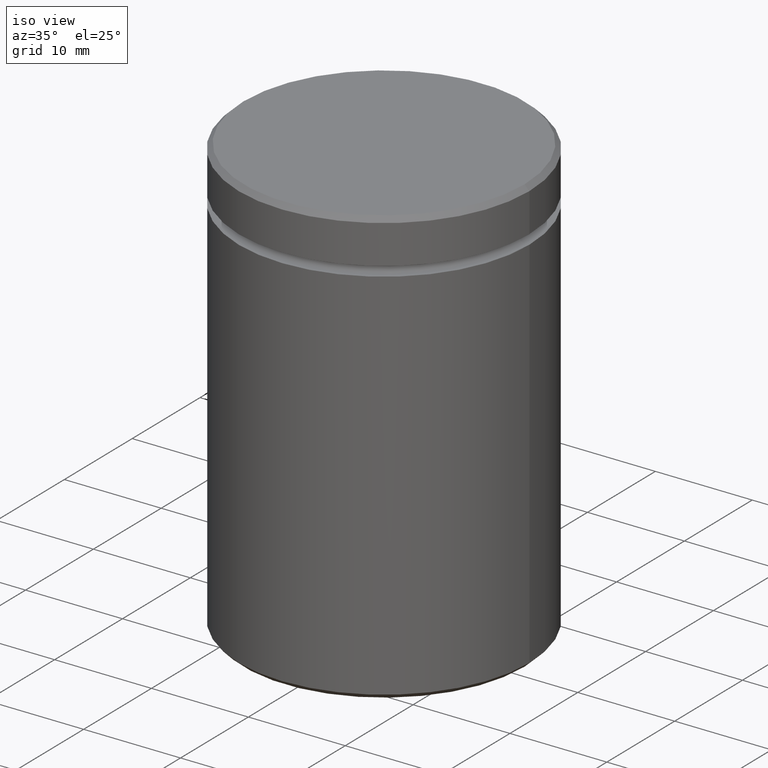
[diagram: clean part render]
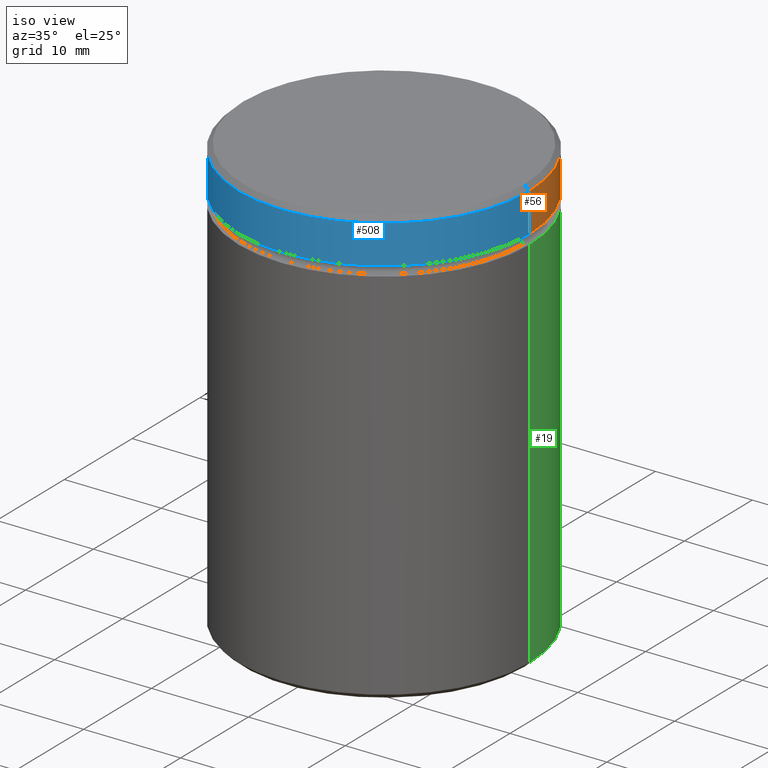
[diagram: same view with three faces highlighted in distinct colors, each labeled with its STEP entity id]
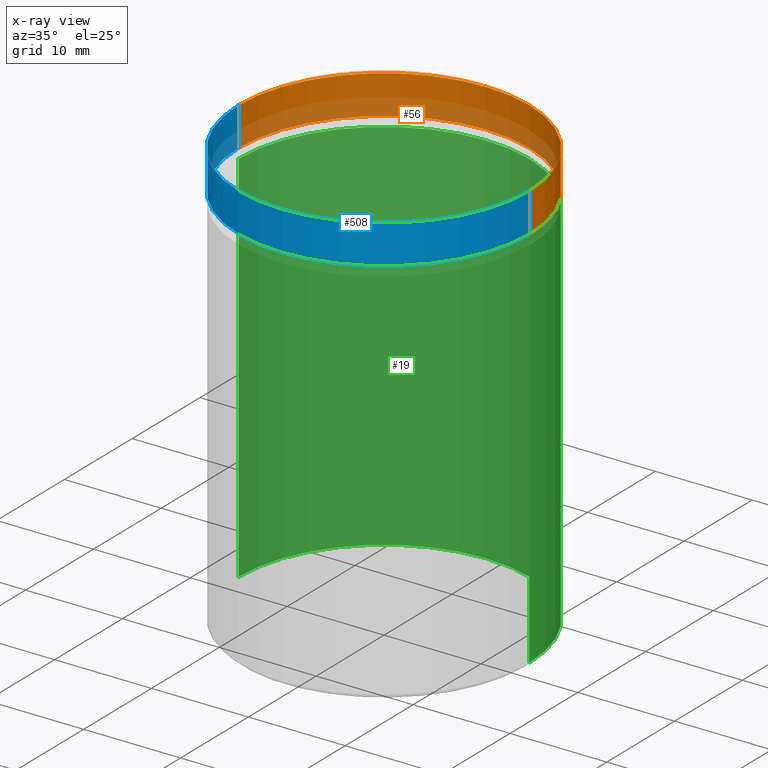
[diagram: x-ray of the same camera — body ghosted, the three highlighted faces saturated]
A machine part, iso view with three faces highlighted in distinct colors.
The next image is the same camera in x-ray (body ghosted, the three faces saturated) — at least one of them is partly hidden behind the body in this view.
Their STEP definitions:

[orange] entity #56 — the highlighted cylindrical surface (partial cylindrical patch) has radius 15 mm, axis along (-0, -0, 1).
#4 = DIRECTION ( 'NONE',  ( 1.000000000000000000, 0.000000000000000000, 0.000000000000000000 ) ) ;
#15 = DIRECTION ( 'NONE',  ( 0.000000000000000000, 0.000000000000000000, -1.000000000000000000 ) ) ;
#23 = EDGE_CURVE ( 'NONE', #366, #95, #306, .T. ) ;
#41 = DIRECTION ( 'NONE',  ( -0.000000000000000000, -0.000000000000000000, 1.000000000000000000 ) ) ;
#44 = DIRECTION ( 'NONE',  ( -0.000000000000000000, -0.000000000000000000, 1.000000000000000000 ) ) ;
#56 = ADVANCED_FACE ( 'NONE', ( #564 ), #135, .T. ) ;
#58 = ORIENTED_EDGE ( 'NONE', *, *, #23, .F. ) ;
#86 = ORIENTED_EDGE ( 'NONE', *, *, #191, .T. ) ;
#95 = VERTEX_POINT ( 'NONE', #176 ) ;
#121 = CARTESIAN_POINT ( 'NONE',  ( 15.00000000000000000, 0.000000000000000000, -4.500000000000000888 ) ) ;
#135 = CYLINDRICAL_SURFACE ( 'NONE', #509, 15.00000000000000000 ) ;
#176 = CARTESIAN_POINT ( 'NONE',  ( 15.00000000000000000, 0.000000000000000000, -0.4999999999999970024 ) ) ;
#178 = CARTESIAN_POINT ( 'NONE',  ( 0.000000000000000000, 0.000000000000000000, 0.000000000000000000 ) ) ;
#191 = EDGE_CURVE ( 'NONE', #319, #95, #380, .T. ) ;
#214 = CARTESIAN_POINT ( 'NONE',  ( -15.00000000000000000, 1.836970198721029589E-15, 0.000000000000000000 ) ) ;
#221 = LINE ( 'NONE', #214, #566 ) ;
#243 = CARTESIAN_POINT ( 'NONE',  ( 0.000000000000000000, 0.000000000000000000, -0.4999999999999970024 ) ) ;
#257 = CIRCLE ( 'NONE', #475, 15.00000000000000000 ) ;
#260 = CARTESIAN_POINT ( 'NONE',  ( -15.00000000000000000, 1.836970198721029589E-15, -4.500000000000000888 ) ) ;
#261 = DIRECTION ( 'NONE',  ( -0.000000000000000000, -0.000000000000000000, 1.000000000000000000 ) ) ;
#277 = AXIS2_PLACEMENT_3D ( 'NONE', #243, #15, #489 ) ;
#291 = EDGE_LOOP ( 'NONE', ( #320, #536, #86, #58 ) ) ;
#306 = LINE ( 'NONE', #347, #538 ) ;
#319 = VERTEX_POINT ( 'NONE', #548 ) ;
#320 = ORIENTED_EDGE ( 'NONE', *, *, #476, .T. ) ;
#347 = CARTESIAN_POINT ( 'NONE',  ( 15.00000000000000000, 0.000000000000000000, 0.000000000000000000 ) ) ;
#366 = VERTEX_POINT ( 'NONE', #121 ) ;
#380 = CIRCLE ( 'NONE', #277, 15.00000000000000000 ) ;
#434 = DIRECTION ( 'NONE',  ( -0.000000000000000000, -0.000000000000000000, 1.000000000000000000 ) ) ;
#475 = AXIS2_PLACEMENT_3D ( 'NONE', #560, #44, #525 ) ;
#476 = EDGE_CURVE ( 'NONE', #366, #517, #257, .T. ) ;
#489 = DIRECTION ( 'NONE',  ( 1.000000000000000000, 0.000000000000000000, 0.000000000000000000 ) ) ;
#509 = AXIS2_PLACEMENT_3D ( 'NONE', #178, #41, #4 ) ;
#517 = VERTEX_POINT ( 'NONE', #260 ) ;
#522 = EDGE_CURVE ( 'NONE', #517, #319, #221, .T. ) ;
#525 = DIRECTION ( 'NONE',  ( 1.000000000000000000, 0.000000000000000000, 0.000000000000000000 ) ) ;
#536 = ORIENTED_EDGE ( 'NONE', *, *, #522, .T. ) ;
#538 = VECTOR ( 'NONE', #261, 1000.000000000000000 ) ;
#548 = CARTESIAN_POINT ( 'NONE',  ( -15.00000000000000000, 1.836970198721029589E-15, -0.4999999999999970024 ) ) ;
#560 = CARTESIAN_POINT ( 'NONE',  ( 0.000000000000000000, 0.000000000000000000, -4.500000000000000888 ) ) ;
#564 = FACE_OUTER_BOUND ( 'NONE', #291, .T. ) ;
#566 = VECTOR ( 'NONE', #434, 1000.000000000000000 ) ;

[blue] entity #508 — the highlighted cylindrical surface (partial cylindrical patch) has radius 15 mm, axis along (-0, -0, 1).
#14 = ORIENTED_EDGE ( 'NONE', *, *, #522, .F. ) ;
#23 = EDGE_CURVE ( 'NONE', #366, #95, #306, .T. ) ;
#43 = ORIENTED_EDGE ( 'NONE', *, *, #449, .T. ) ;
#51 = ORIENTED_EDGE ( 'NONE', *, *, #387, .T. ) ;
#90 = DIRECTION ( 'NONE',  ( 1.000000000000000000, 0.000000000000000000, 0.000000000000000000 ) ) ;
#95 = VERTEX_POINT ( 'NONE', #176 ) ;
#101 = AXIS2_PLACEMENT_3D ( 'NONE', #369, #278, #418 ) ;
#121 = CARTESIAN_POINT ( 'NONE',  ( 15.00000000000000000, 0.000000000000000000, -4.500000000000000888 ) ) ;
#176 = CARTESIAN_POINT ( 'NONE',  ( 15.00000000000000000, 0.000000000000000000, -0.4999999999999970024 ) ) ;
#214 = CARTESIAN_POINT ( 'NONE',  ( -15.00000000000000000, 1.836970198721029589E-15, 0.000000000000000000 ) ) ;
#221 = LINE ( 'NONE', #214, #566 ) ;
#249 = CIRCLE ( 'NONE', #541, 15.00000000000000000 ) ;
#250 = AXIS2_PLACEMENT_3D ( 'NONE', #338, #483, #90 ) ;
#260 = CARTESIAN_POINT ( 'NONE',  ( -15.00000000000000000, 1.836970198721029589E-15, -4.500000000000000888 ) ) ;
#261 = DIRECTION ( 'NONE',  ( -0.000000000000000000, -0.000000000000000000, 1.000000000000000000 ) ) ;
#278 = DIRECTION ( 'NONE',  ( -0.000000000000000000, -0.000000000000000000, 1.000000000000000000 ) ) ;
#300 = ORIENTED_EDGE ( 'NONE', *, *, #23, .T. ) ;
#301 = EDGE_LOOP ( 'NONE', ( #14, #51, #300, #43 ) ) ;
#305 = DIRECTION ( 'NONE',  ( 1.000000000000000000, 0.000000000000000000, 0.000000000000000000 ) ) ;
#306 = LINE ( 'NONE', #347, #538 ) ;
#319 = VERTEX_POINT ( 'NONE', #548 ) ;
#338 = CARTESIAN_POINT ( 'NONE',  ( 0.000000000000000000, 0.000000000000000000, 0.000000000000000000 ) ) ;
#347 = CARTESIAN_POINT ( 'NONE',  ( 15.00000000000000000, 0.000000000000000000, 0.000000000000000000 ) ) ;
#366 = VERTEX_POINT ( 'NONE', #121 ) ;
#369 = CARTESIAN_POINT ( 'NONE',  ( 0.000000000000000000, 0.000000000000000000, -4.500000000000000888 ) ) ;
#387 = EDGE_CURVE ( 'NONE', #517, #366, #511, .T. ) ;
#390 = CARTESIAN_POINT ( 'NONE',  ( 0.000000000000000000, 0.000000000000000000, -0.4999999999999970024 ) ) ;
#418 = DIRECTION ( 'NONE',  ( 1.000000000000000000, 0.000000000000000000, 0.000000000000000000 ) ) ;
#434 = DIRECTION ( 'NONE',  ( -0.000000000000000000, -0.000000000000000000, 1.000000000000000000 ) ) ;
#449 = EDGE_CURVE ( 'NONE', #95, #319, #249, .T. ) ;
#479 = FACE_OUTER_BOUND ( 'NONE', #301, .T. ) ;
#483 = DIRECTION ( 'NONE',  ( -0.000000000000000000, -0.000000000000000000, 1.000000000000000000 ) ) ;
#508 = ADVANCED_FACE ( 'NONE', ( #479 ), #555, .T. ) ;
#511 = CIRCLE ( 'NONE', #101, 15.00000000000000000 ) ;
#517 = VERTEX_POINT ( 'NONE', #260 ) ;
#522 = EDGE_CURVE ( 'NONE', #517, #319, #221, .T. ) ;
#528 = DIRECTION ( 'NONE',  ( 0.000000000000000000, 0.000000000000000000, -1.000000000000000000 ) ) ;
#538 = VECTOR ( 'NONE', #261, 1000.000000000000000 ) ;
#541 = AXIS2_PLACEMENT_3D ( 'NONE', #390, #528, #305 ) ;
#548 = CARTESIAN_POINT ( 'NONE',  ( -15.00000000000000000, 1.836970198721029589E-15, -0.4999999999999970024 ) ) ;
#555 = CYLINDRICAL_SURFACE ( 'NONE', #250, 15.00000000000000000 ) ;
#566 = VECTOR ( 'NONE', #434, 1000.000000000000000 ) ;

[green] entity #19 — the highlighted cylindrical surface (partial cylindrical patch) has radius 15 mm, axis along (-0, -0, 1).
#19 = ADVANCED_FACE ( 'NONE', ( #181 ), #256, .T. ) ;
#25 = CIRCLE ( 'NONE', #374, 15.00000000000000000 ) ;
#45 = VECTOR ( 'NONE', #458, 1000.000000000000000 ) ;
#47 = VERTEX_POINT ( 'NONE', #472 ) ;
#48 = ORIENTED_EDGE ( 'NONE', *, *, #229, .F. ) ;
#98 = AXIS2_PLACEMENT_3D ( 'NONE', #477, #530, #438 ) ;
#100 = LINE ( 'NONE', #106, #45 ) ;
#106 = CARTESIAN_POINT ( 'NONE',  ( -15.00000000000000000, 1.836970198721029589E-15, 0.000000000000000000 ) ) ;
#108 = VECTOR ( 'NONE', #274, 1000.000000000000000 ) ;
#120 = EDGE_CURVE ( 'NONE', #523, #47, #167, .T. ) ;
#125 = DIRECTION ( 'NONE',  ( -0.000000000000000000, -0.000000000000000000, 1.000000000000000000 ) ) ;
#143 = EDGE_LOOP ( 'NONE', ( #393, #452, #284, #48 ) ) ;
#148 = VERTEX_POINT ( 'NONE', #499 ) ;
#167 = CIRCLE ( 'NONE', #556, 15.00000000000000000 ) ;
#181 = FACE_OUTER_BOUND ( 'NONE', #143, .T. ) ;
#195 = LINE ( 'NONE', #272, #108 ) ;
#199 = DIRECTION ( 'NONE',  ( 1.000000000000000000, 0.000000000000000000, 0.000000000000000000 ) ) ;
#223 = EDGE_CURVE ( 'NONE', #47, #288, #100, .T. ) ;
#229 = EDGE_CURVE ( 'NONE', #523, #148, #195, .T. ) ;
#256 = CYLINDRICAL_SURFACE ( 'NONE', #98, 15.00000000000000000 ) ;
#267 = CARTESIAN_POINT ( 'NONE',  ( 15.00000000000000000, 0.000000000000000000, -44.49999999999998579 ) ) ;
#272 = CARTESIAN_POINT ( 'NONE',  ( 15.00000000000000000, 0.000000000000000000, 0.000000000000000000 ) ) ;
#274 = DIRECTION ( 'NONE',  ( -0.000000000000000000, -0.000000000000000000, 1.000000000000000000 ) ) ;
#284 = ORIENTED_EDGE ( 'NONE', *, *, #373, .F. ) ;
#288 = VERTEX_POINT ( 'NONE', #332 ) ;
#295 = DIRECTION ( 'NONE',  ( -0.000000000000000000, -0.000000000000000000, 1.000000000000000000 ) ) ;
#332 = CARTESIAN_POINT ( 'NONE',  ( -15.00000000000000000, 1.836970198721029589E-15, -5.500000000000000000 ) ) ;
#373 = EDGE_CURVE ( 'NONE', #148, #288, #25, .T. ) ;
#374 = AXIS2_PLACEMENT_3D ( 'NONE', #501, #295, #199 ) ;
#393 = ORIENTED_EDGE ( 'NONE', *, *, #120, .T. ) ;
#438 = DIRECTION ( 'NONE',  ( 1.000000000000000000, 0.000000000000000000, 0.000000000000000000 ) ) ;
#452 = ORIENTED_EDGE ( 'NONE', *, *, #223, .T. ) ;
#458 = DIRECTION ( 'NONE',  ( -0.000000000000000000, -0.000000000000000000, 1.000000000000000000 ) ) ;
#472 = CARTESIAN_POINT ( 'NONE',  ( -15.00000000000000000, 1.836970198721029589E-15, -44.49999999999998579 ) ) ;
#474 = DIRECTION ( 'NONE',  ( -1.000000000000000000, 0.000000000000000000, 0.000000000000000000 ) ) ;
#477 = CARTESIAN_POINT ( 'NONE',  ( 0.000000000000000000, 0.000000000000000000, 0.000000000000000000 ) ) ;
#499 = CARTESIAN_POINT ( 'NONE',  ( 15.00000000000000000, 0.000000000000000000, -5.500000000000000000 ) ) ;
#501 = CARTESIAN_POINT ( 'NONE',  ( 0.000000000000000000, 0.000000000000000000, -5.500000000000000000 ) ) ;
#516 = CARTESIAN_POINT ( 'NONE',  ( 0.000000000000000000, 0.000000000000000000, -44.49999999999998579 ) ) ;
#523 = VERTEX_POINT ( 'NONE', #267 ) ;
#530 = DIRECTION ( 'NONE',  ( -0.000000000000000000, -0.000000000000000000, 1.000000000000000000 ) ) ;
#556 = AXIS2_PLACEMENT_3D ( 'NONE', #516, #125, #474 ) ;